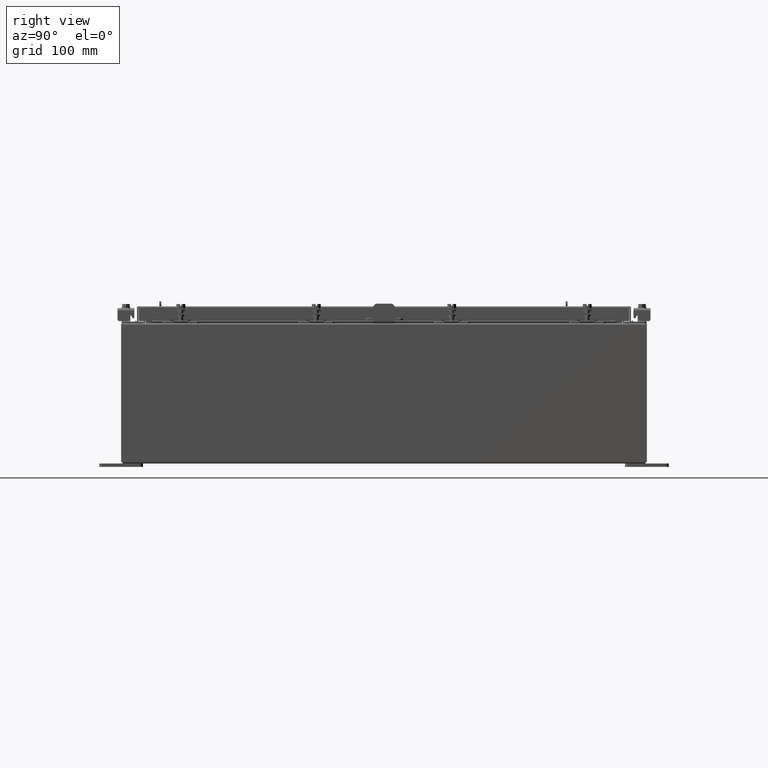
[diagram: clean part render]
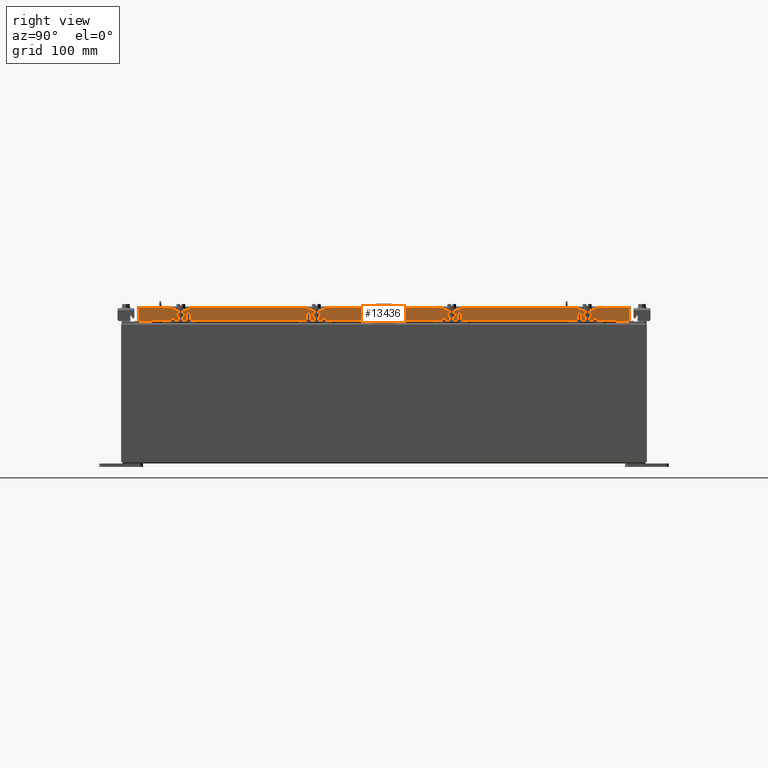
[diagram: same view with one face highlighted and labeled with its STEP entity id]
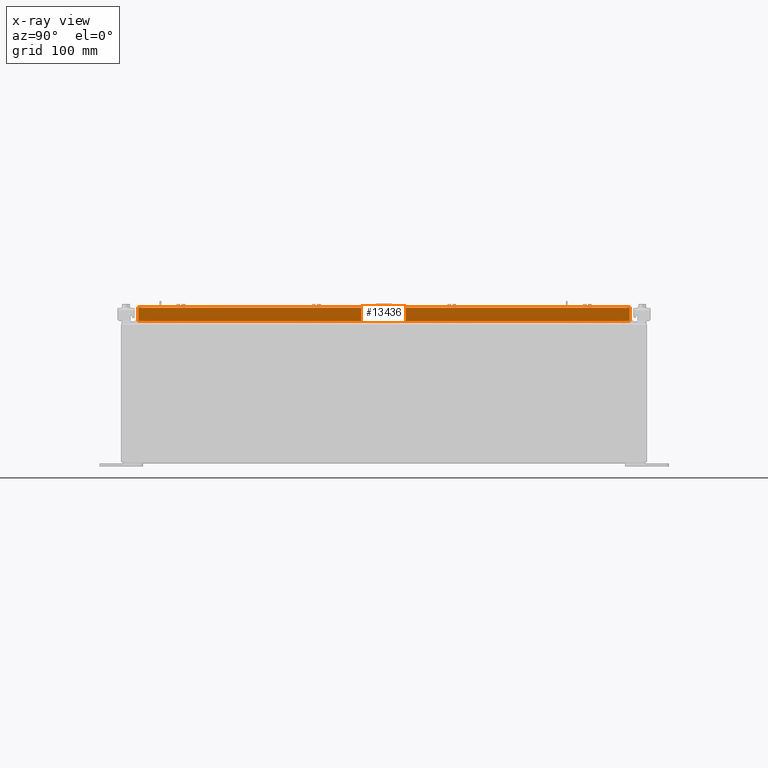
[diagram: x-ray of the same camera — body ghosted, the highlighted face saturated]
A machine part, right view. The second image highlights one B-rep face of the part: STEP entity #13436.
The next image is the same camera in x-ray: the body ghosted, the highlighted face saturated — about 0% of this face is hidden behind the body in this view.
In plain terms, the highlighted planar face has unit normal (1, 0, 0).
Its self-contained STEP definition (entity closure, byte-faithful):
#187 = FACE_OUTER_BOUND ( 'NONE', #4074, .T. ) ;
#911 = ORIENTED_EDGE ( 'NONE', *, *, #18389, .F. ) ;
#929 = DIRECTION ( 'NONE',  ( 0.0000000000000000000, -1.000000000000000000, 0.0000000000000000000 ) ) ;
#1370 = CARTESIAN_POINT ( 'NONE',  ( 11.07799999999999900, 14.00515786437626500, -0.08770000000000007000 ) ) ;
#2565 = EDGE_CURVE ( 'NONE', #6350, #12367, #22269, .T. ) ;
#3488 = ORIENTED_EDGE ( 'NONE', *, *, #17205, .F. ) ;
#3562 = DIRECTION ( 'NONE',  ( 1.000000000000000000, 0.0000000000000000000, 2.818880942772360100E-015 ) ) ;
#4074 = EDGE_LOOP ( 'NONE', ( #3488, #911, #5875, #16423, #19057, #12548 ) ) ;
#4144 = VERTEX_POINT ( 'NONE', #9031 ) ;
#4960 = CARTESIAN_POINT ( 'NONE',  ( 11.07800000000000300, -14.09399999999999900, -0.8499999999999996400 ) ) ;
#5256 = DIRECTION ( 'NONE',  ( 0.0000000000000000000, -1.000000000000000000, 0.0000000000000000000 ) ) ;
#5741 = AXIS2_PLACEMENT_3D ( 'NONE', #21411, #3562, #16066 ) ;
#5875 = ORIENTED_EDGE ( 'NONE', *, *, #21917, .F. ) ;
#6350 = VERTEX_POINT ( 'NONE', #1370 ) ;
#6375 = CARTESIAN_POINT ( 'NONE',  ( 11.07800000000000300, -14.00515786437626400, -0.8499999999999996400 ) ) ;
#6789 = DIRECTION ( 'NONE',  ( 0.0000000000000000000, -1.000000000000000000, 0.0000000000000000000 ) ) ;
#6819 = LINE ( 'NONE', #4960, #15756 ) ;
#7031 = CARTESIAN_POINT ( 'NONE',  ( 11.07799999999999200, 13.25515786437627200, -0.8500000000000018700 ) ) ;
#7076 = EDGE_CURVE ( 'NONE', #16781, #6350, #12658, .T. ) ;
#7172 = CARTESIAN_POINT ( 'NONE',  ( 11.07799999999999900, -14.00515786437626900, -0.07469999999999978000 ) ) ;
#7374 = VECTOR ( 'NONE', #12445, 39.37007874015748100 ) ;
#7440 = VECTOR ( 'NONE', #929, 39.37007874015748100 ) ;
#7931 = LINE ( 'NONE', #7172, #7374 ) ;
#8860 = PLANE ( 'NONE',  #5741 ) ;
#9031 = CARTESIAN_POINT ( 'NONE',  ( 11.07799999999999200, -13.25515786437626400, -0.8500000000000018700 ) ) ;
#10610 = CARTESIAN_POINT ( 'NONE',  ( 11.07799999999999200, 13.25515786437627100, -0.8500000000000018700 ) ) ;
#10663 = DIRECTION ( 'NONE',  ( 0.0000000000000000000, -1.000000000000000000, 0.0000000000000000000 ) ) ;
#11548 = CARTESIAN_POINT ( 'NONE',  ( 11.07799999999999900, 14.00515786437626900, 1.292858714020875700E-013 ) ) ;
#12367 = VERTEX_POINT ( 'NONE', #17216 ) ;
#12445 = DIRECTION ( 'NONE',  ( -2.818880942772360100E-015, -6.982962677686265900E-015, 1.000000000000000000 ) ) ;
#12548 = ORIENTED_EDGE ( 'NONE', *, *, #2565, .T. ) ;
#12658 = LINE ( 'NONE', #11548, #21108 ) ;
#13321 = DIRECTION ( 'NONE',  ( -2.818880942772360100E-015, -6.982962677686265900E-015, 1.000000000000000000 ) ) ;
#13436 = ADVANCED_FACE ( 'NONE', ( #187 ), #8860, .T. ) ;
#14454 = VERTEX_POINT ( 'NONE', #6375 ) ;
#14579 = EDGE_CURVE ( 'NONE', #16781, #19153, #6819, .T. ) ;
#15690 = LINE ( 'NONE', #15977, #21058 ) ;
#15756 = VECTOR ( 'NONE', #6789, 39.37007874015748100 ) ;
#15977 = CARTESIAN_POINT ( 'NONE',  ( 11.07800000000000300, -14.09399999999999900, -0.8499999999999996400 ) ) ;
#16066 = DIRECTION ( 'NONE',  ( 2.818880942772360100E-015, 0.0000000000000000000, -1.000000000000000000 ) ) ;
#16423 = ORIENTED_EDGE ( 'NONE', *, *, #14579, .F. ) ;
#16781 = VERTEX_POINT ( 'NONE', #20482 ) ;
#17205 = EDGE_CURVE ( 'NONE', #14454, #12367, #7931, .T. ) ;
#17216 = CARTESIAN_POINT ( 'NONE',  ( 11.07799999999999900, -14.00515786437626900, -0.08770000000000007000 ) ) ;
#17302 = LINE ( 'NONE', #7031, #22085 ) ;
#18389 = EDGE_CURVE ( 'NONE', #4144, #14454, #15690, .T. ) ;
#18741 = CARTESIAN_POINT ( 'NONE',  ( 11.07799999999999900, 0.0000000000000000000, -0.08770000000000007000 ) ) ;
#19057 = ORIENTED_EDGE ( 'NONE', *, *, #7076, .T. ) ;
#19153 = VERTEX_POINT ( 'NONE', #10610 ) ;
#20482 = CARTESIAN_POINT ( 'NONE',  ( 11.07800000000000300, 14.00515786437627200, -0.8499999999999996400 ) ) ;
#21058 = VECTOR ( 'NONE', #5256, 39.37007874015748100 ) ;
#21108 = VECTOR ( 'NONE', #13321, 39.37007874015748100 ) ;
#21411 = CARTESIAN_POINT ( 'NONE',  ( 11.07799999999999900, 0.0000000000000000000, 3.148837674004379000E-014 ) ) ;
#21917 = EDGE_CURVE ( 'NONE', #19153, #4144, #17302, .T. ) ;
#22085 = VECTOR ( 'NONE', #10663, 39.37007874015748100 ) ;
#22269 = LINE ( 'NONE', #18741, #7440 ) ;